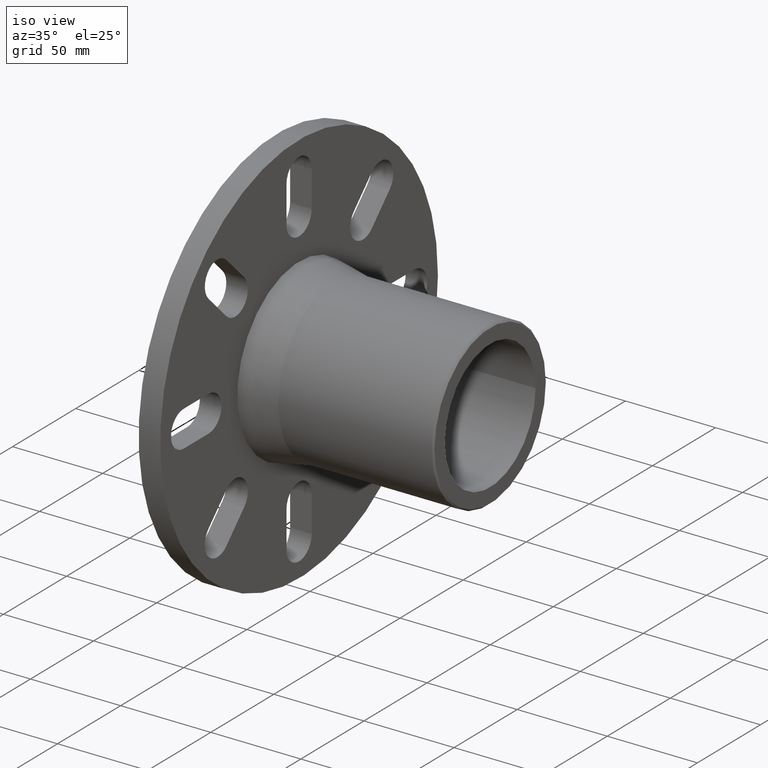
[diagram: clean part render]
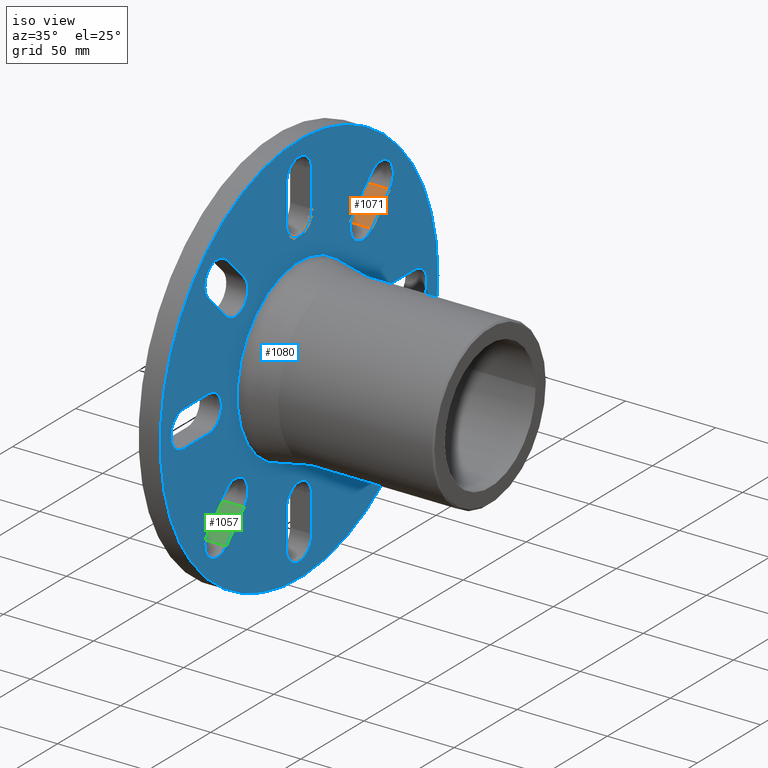
[diagram: same view with three faces highlighted in distinct colors, each labeled with its STEP entity id]
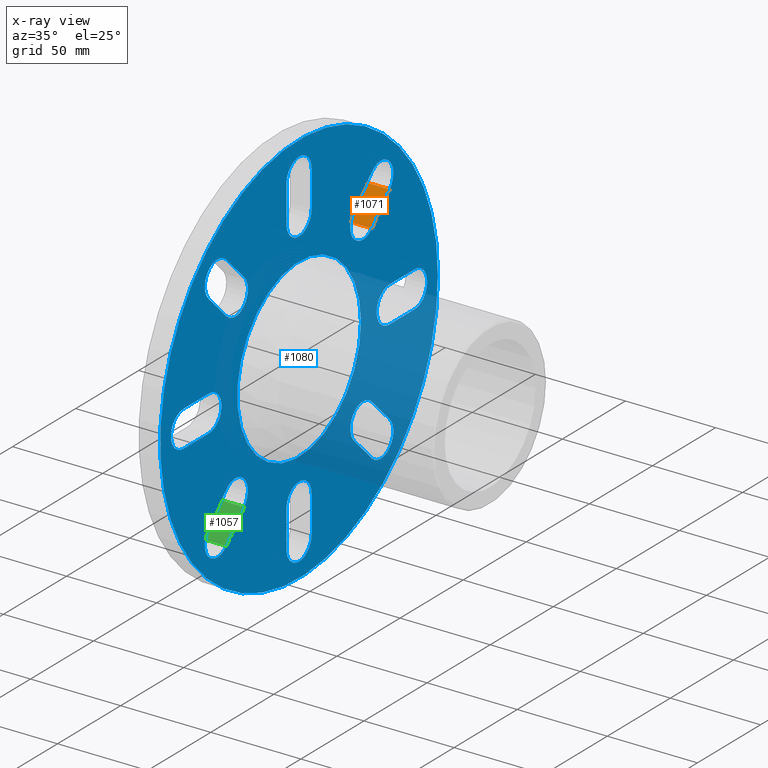
[diagram: x-ray of the same camera — body ghosted, the three highlighted faces saturated]
A machine part, iso view with three faces highlighted in distinct colors.
The next image is the same camera in x-ray (body ghosted, the three faces saturated) — at least one of them is partly hidden behind the body in this view.
Their STEP definitions:

[orange] entity #1071 — the highlighted planar face has unit normal (0, 0.7071, -0.7071).
#18=LINE('',#1666,#82);
#68=LINE('',#1822,#132);
#69=LINE('',#1825,#133);
#70=LINE('',#1826,#134);
#82=VECTOR('',#1350,20.);
#132=VECTOR('',#1512,12.);
#133=VECTOR('',#1515,20.);
#134=VECTOR('',#1516,12.);
#170=PLANE('',#1203);
#317=FACE_OUTER_BOUND('',#424,.T.);
#424=EDGE_LOOP('',(#943,#944,#945,#946));
#554=VERTEX_POINT('',#1659);
#557=VERTEX_POINT('',#1664);
#607=VERTEX_POINT('',#1819);
#608=VERTEX_POINT('',#1824);
#657=EDGE_CURVE('',#557,#554,#18,.T.);
#732=EDGE_CURVE('',#554,#607,#68,.T.);
#733=EDGE_CURVE('',#607,#608,#69,.T.);
#734=EDGE_CURVE('',#557,#608,#70,.T.);
#943=ORIENTED_EDGE('',*,*,#733,.F.);
#944=ORIENTED_EDGE('',*,*,#732,.F.);
#945=ORIENTED_EDGE('',*,*,#657,.F.);
#946=ORIENTED_EDGE('',*,*,#734,.T.);
#1071=ADVANCED_FACE('',(#317),#170,.F.);
#1203=AXIS2_PLACEMENT_3D('',#1823,#1513,#1514);
#1350=DIRECTION('',(-8.65956056235494E-17,0.707106781186548,0.707106781186547));
#1512=DIRECTION('',(1.,7.09646309009616E-17,7.09646309009616E-17));
#1513=DIRECTION('center_axis',(2.22842063621754E-32,0.707106781186547,-0.707106781186548));
#1514=DIRECTION('ref_axis',(0.,0.707106781186548,0.707106781186548));
#1515=DIRECTION('',(8.65956056235494E-17,-0.707106781186548,-0.707106781186547));
#1516=DIRECTION('',(1.,7.09646309009616E-17,7.09646309009616E-17));
#1659=CARTESIAN_POINT('',(-118.,71.7713382904346,57.6292026667036));
#1664=CARTESIAN_POINT('',(-118.,57.6292026667036,43.4870670429727));
#1666=CARTESIAN_POINT('',(-118.,59.8501352392845,45.7079996155536));
#1819=CARTESIAN_POINT('',(-106.,71.7713382904346,57.6292026667036));
#1822=CARTESIAN_POINT('',(-118.,71.7713382904346,57.6292026667036));
#1823=CARTESIAN_POINT('Origin',(-118.,57.6292026667036,43.4870670429727));
#1824=CARTESIAN_POINT('',(-106.,57.6292026667036,43.4870670429727));
#1825=CARTESIAN_POINT('',(-106.,44.6001352392845,30.4579996155536));
#1826=CARTESIAN_POINT('',(-118.,57.6292026667036,43.4870670429727));

[blue] entity #1080 — the highlighted planar face has unit normal (1, 0, 0).
#33=LINE('',#1729,#97);
#36=LINE('',#1736,#100);
#39=LINE('',#1745,#103);
#42=LINE('',#1752,#106);
#45=LINE('',#1761,#109);
#48=LINE('',#1768,#112);
#51=LINE('',#1777,#115);
#54=LINE('',#1784,#118);
#57=LINE('',#1793,#121);
#60=LINE('',#1800,#124);
#63=LINE('',#1809,#127);
#66=LINE('',#1816,#130);
#69=LINE('',#1825,#133);
#72=LINE('',#1832,#136);
#75=LINE('',#1841,#139);
#78=LINE('',#1848,#142);
#97=VECTOR('',#1407,20.);
#100=VECTOR('',#1416,20.);
#103=VECTOR('',#1425,20.);
#106=VECTOR('',#1434,20.);
#109=VECTOR('',#1443,20.);
#112=VECTOR('',#1452,20.);
#115=VECTOR('',#1461,20.);
#118=VECTOR('',#1470,20.);
#121=VECTOR('',#1479,20.);
#124=VECTOR('',#1488,20.);
#127=VECTOR('',#1497,20.);
#130=VECTOR('',#1506,20.);
#133=VECTOR('',#1515,20.);
#136=VECTOR('',#1524,20.);
#139=VECTOR('',#1533,20.);
#142=VECTOR('',#1542,20.);
#175=PLANE('',#1217);
#250=FACE_BOUND('',#436,.T.);
#251=FACE_BOUND('',#437,.T.);
#252=FACE_BOUND('',#438,.T.);
#253=FACE_BOUND('',#439,.T.);
#254=FACE_BOUND('',#440,.T.);
#255=FACE_BOUND('',#441,.T.);
#256=FACE_BOUND('',#442,.T.);
#257=FACE_BOUND('',#443,.T.);
#258=FACE_BOUND('',#444,.T.);
#326=FACE_OUTER_BOUND('',#435,.T.);
#435=EDGE_LOOP('',(#975));
#436=EDGE_LOOP('',(#976,#977,#978,#979));
#437=EDGE_LOOP('',(#980,#981,#982,#983));
#438=EDGE_LOOP('',(#984,#985,#986,#987));
#439=EDGE_LOOP('',(#988,#989,#990,#991));
#440=EDGE_LOOP('',(#992,#993,#994,#995));
#441=EDGE_LOOP('',(#996,#997,#998,#999));
#442=EDGE_LOOP('',(#1000,#1001,#1002,#1003));
#443=EDGE_LOOP('',(#1004,#1005,#1006,#1007));
#444=EDGE_LOOP('',(#1008));
#498=CIRCLE('',#1166,10.);
#499=CIRCLE('',#1169,10.);
#500=CIRCLE('',#1172,10.);
#501=CIRCLE('',#1175,10.);
#502=CIRCLE('',#1178,10.);
#503=CIRCLE('',#1181,10.);
#504=CIRCLE('',#1184,10.);
#505=CIRCLE('',#1187,10.);
#506=CIRCLE('',#1190,10.);
#507=CIRCLE('',#1193,10.);
#508=CIRCLE('',#1196,10.);
#509=CIRCLE('',#1199,10.);
#510=CIRCLE('',#1202,10.);
#511=CIRCLE('',#1205,10.);
#512=CIRCLE('',#1208,10.);
#513=CIRCLE('',#1211,10.);
#515=CIRCLE('',#1216,110.);
#516=CIRCLE('',#1218,49.);
#582=VERTEX_POINT('',#1722);
#583=VERTEX_POINT('',#1723);
#584=VERTEX_POINT('',#1728);
#585=VERTEX_POINT('',#1732);
#586=VERTEX_POINT('',#1738);
#587=VERTEX_POINT('',#1739);
#588=VERTEX_POINT('',#1744);
#589=VERTEX_POINT('',#1748);
#590=VERTEX_POINT('',#1754);
#591=VERTEX_POINT('',#1755);
#592=VERTEX_POINT('',#1760);
#593=VERTEX_POINT('',#1764);
#594=VERTEX_POINT('',#1770);
#595=VERTEX_POINT('',#1771);
#596=VERTEX_POINT('',#1776);
#597=VERTEX_POINT('',#1780);
#598=VERTEX_POINT('',#1786);
#599=VERTEX_POINT('',#1787);
#600=VERTEX_POINT('',#1792);
#601=VERTEX_POINT('',#1796);
#602=VERTEX_POINT('',#1802);
#603=VERTEX_POINT('',#1803);
#604=VERTEX_POINT('',#1808);
#605=VERTEX_POINT('',#1812);
#606=VERTEX_POINT('',#1818);
#607=VERTEX_POINT('',#1819);
#608=VERTEX_POINT('',#1824);
#609=VERTEX_POINT('',#1828);
#610=VERTEX_POINT('',#1834);
#611=VERTEX_POINT('',#1835);
#612=VERTEX_POINT('',#1840);
#613=VERTEX_POINT('',#1844);
#615=VERTEX_POINT('',#1853);
#616=VERTEX_POINT('',#1856);
#682=EDGE_CURVE('',#582,#583,#498,.T.);
#685=EDGE_CURVE('',#583,#584,#33,.T.);
#687=EDGE_CURVE('',#584,#585,#499,.T.);
#689=EDGE_CURVE('',#585,#582,#36,.T.);
#690=EDGE_CURVE('',#586,#587,#500,.T.);
#693=EDGE_CURVE('',#587,#588,#39,.T.);
#695=EDGE_CURVE('',#588,#589,#501,.T.);
#697=EDGE_CURVE('',#589,#586,#42,.T.);
#698=EDGE_CURVE('',#590,#591,#502,.T.);
#701=EDGE_CURVE('',#591,#592,#45,.T.);
#703=EDGE_CURVE('',#592,#593,#503,.T.);
#705=EDGE_CURVE('',#593,#590,#48,.T.);
#706=EDGE_CURVE('',#594,#595,#504,.T.);
#709=EDGE_CURVE('',#595,#596,#51,.T.);
#711=EDGE_CURVE('',#596,#597,#505,.T.);
#713=EDGE_CURVE('',#597,#594,#54,.T.);
#714=EDGE_CURVE('',#598,#599,#506,.T.);
#717=EDGE_CURVE('',#599,#600,#57,.T.);
#719=EDGE_CURVE('',#600,#601,#507,.T.);
#721=EDGE_CURVE('',#601,#598,#60,.T.);
#722=EDGE_CURVE('',#602,#603,#508,.T.);
#725=EDGE_CURVE('',#603,#604,#63,.T.);
#727=EDGE_CURVE('',#604,#605,#509,.T.);
#729=EDGE_CURVE('',#605,#602,#66,.T.);
#730=EDGE_CURVE('',#606,#607,#510,.T.);
#733=EDGE_CURVE('',#607,#608,#69,.T.);
#735=EDGE_CURVE('',#608,#609,#511,.T.);
#737=EDGE_CURVE('',#609,#606,#72,.T.);
#738=EDGE_CURVE('',#610,#611,#512,.T.);
#741=EDGE_CURVE('',#611,#612,#75,.T.);
#743=EDGE_CURVE('',#612,#613,#513,.T.);
#745=EDGE_CURVE('',#613,#610,#78,.T.);
#747=EDGE_CURVE('',#615,#615,#515,.T.);
#748=EDGE_CURVE('',#616,#616,#516,.T.);
#975=ORIENTED_EDGE('',*,*,#747,.T.);
#976=ORIENTED_EDGE('',*,*,#682,.T.);
#977=ORIENTED_EDGE('',*,*,#685,.T.);
#978=ORIENTED_EDGE('',*,*,#687,.T.);
#979=ORIENTED_EDGE('',*,*,#689,.T.);
#980=ORIENTED_EDGE('',*,*,#690,.T.);
#981=ORIENTED_EDGE('',*,*,#693,.T.);
#982=ORIENTED_EDGE('',*,*,#695,.T.);
#983=ORIENTED_EDGE('',*,*,#697,.T.);
#984=ORIENTED_EDGE('',*,*,#698,.T.);
#985=ORIENTED_EDGE('',*,*,#701,.T.);
#986=ORIENTED_EDGE('',*,*,#703,.T.);
#987=ORIENTED_EDGE('',*,*,#705,.T.);
#988=ORIENTED_EDGE('',*,*,#706,.T.);
#989=ORIENTED_EDGE('',*,*,#709,.T.);
#990=ORIENTED_EDGE('',*,*,#711,.T.);
#991=ORIENTED_EDGE('',*,*,#713,.T.);
#992=ORIENTED_EDGE('',*,*,#714,.T.);
#993=ORIENTED_EDGE('',*,*,#717,.T.);
#994=ORIENTED_EDGE('',*,*,#719,.T.);
#995=ORIENTED_EDGE('',*,*,#721,.T.);
#996=ORIENTED_EDGE('',*,*,#722,.T.);
#997=ORIENTED_EDGE('',*,*,#725,.T.);
#998=ORIENTED_EDGE('',*,*,#727,.T.);
#999=ORIENTED_EDGE('',*,*,#729,.T.);
#1000=ORIENTED_EDGE('',*,*,#730,.T.);
#1001=ORIENTED_EDGE('',*,*,#733,.T.);
#1002=ORIENTED_EDGE('',*,*,#735,.T.);
#1003=ORIENTED_EDGE('',*,*,#737,.T.);
#1004=ORIENTED_EDGE('',*,*,#743,.T.);
#1005=ORIENTED_EDGE('',*,*,#745,.T.);
#1006=ORIENTED_EDGE('',*,*,#738,.T.);
#1007=ORIENTED_EDGE('',*,*,#741,.T.);
#1008=ORIENTED_EDGE('',*,*,#748,.F.);
#1080=ADVANCED_FACE('',(#326,#250,#251,#252,#253,#254,#255,#256,#257,#258),
#175,.T.);
#1166=AXIS2_PLACEMENT_3D('',#1724,#1401,#1402);
#1169=AXIS2_PLACEMENT_3D('',#1733,#1411,#1412);
#1172=AXIS2_PLACEMENT_3D('',#1740,#1419,#1420);
#1175=AXIS2_PLACEMENT_3D('',#1749,#1429,#1430);
#1178=AXIS2_PLACEMENT_3D('',#1756,#1437,#1438);
#1181=AXIS2_PLACEMENT_3D('',#1765,#1447,#1448);
#1184=AXIS2_PLACEMENT_3D('',#1772,#1455,#1456);
#1187=AXIS2_PLACEMENT_3D('',#1781,#1465,#1466);
#1190=AXIS2_PLACEMENT_3D('',#1788,#1473,#1474);
#1193=AXIS2_PLACEMENT_3D('',#1797,#1483,#1484);
#1196=AXIS2_PLACEMENT_3D('',#1804,#1491,#1492);
#1199=AXIS2_PLACEMENT_3D('',#1813,#1501,#1502);
#1202=AXIS2_PLACEMENT_3D('',#1820,#1509,#1510);
#1205=AXIS2_PLACEMENT_3D('',#1829,#1519,#1520);
#1208=AXIS2_PLACEMENT_3D('',#1836,#1527,#1528);
#1211=AXIS2_PLACEMENT_3D('',#1845,#1537,#1538);
#1216=AXIS2_PLACEMENT_3D('',#1854,#1549,#1550);
#1217=AXIS2_PLACEMENT_3D('',#1855,#1551,#1552);
#1218=AXIS2_PLACEMENT_3D('',#1857,#1553,#1554);
#1401=DIRECTION('center_axis',(-1.,-1.22464679914735E-16,0.));
#1402=DIRECTION('ref_axis',(-3.56547301794808E-31,0.70710678118655,0.707106781186545));
#1407=DIRECTION('',(8.65956056235493E-17,-0.707106781186547,0.707106781186548));
#1411=DIRECTION('center_axis',(-1.,-1.22464679914735E-16,0.));
#1412=DIRECTION('ref_axis',(0.,-0.707106781186548,-0.707106781186547));
#1416=DIRECTION('',(-8.65956056235493E-17,0.707106781186547,-0.707106781186548));
#1419=DIRECTION('center_axis',(-1.,-1.22464679914735E-16,0.));
#1420=DIRECTION('ref_axis',(-3.56547301794808E-31,1.,-3.77475828372553E-15));
#1425=DIRECTION('',(-3.39907768361723E-32,2.77555756156289E-16,1.));
#1429=DIRECTION('center_axis',(-1.,-1.22464679914735E-16,0.));
#1430=DIRECTION('ref_axis',(0.,-1.,2.22044604925031E-16));
#1434=DIRECTION('',(3.39907768361723E-32,-2.77555756156289E-16,-1.));
#1437=DIRECTION('center_axis',(-1.,-1.22464679914735E-16,0.));
#1438=DIRECTION('ref_axis',(-3.56547301794808E-31,0.707106781186545,-0.70710678118655));
#1443=DIRECTION('',(-8.65956056235494E-17,0.707106781186548,0.707106781186547));
#1447=DIRECTION('center_axis',(-1.,-1.22464679914735E-16,0.));
#1448=DIRECTION('ref_axis',(0.,-0.707106781186547,0.707106781186548));
#1452=DIRECTION('',(8.65956056235494E-17,-0.707106781186548,-0.707106781186547));
#1455=DIRECTION('center_axis',(-1.,-1.22464679914735E-16,0.));
#1456=DIRECTION('ref_axis',(-3.56547301794808E-31,-3.77475828372553E-15,
-1.));
#1461=DIRECTION('',(-1.22464679914735E-16,1.,-2.77555756156289E-16));
#1465=DIRECTION('center_axis',(-1.,-1.22464679914735E-16,0.));
#1466=DIRECTION('ref_axis',(0.,2.22044604925031E-16,1.));
#1470=DIRECTION('',(1.22464679914735E-16,-1.,2.77555756156289E-16));
#1473=DIRECTION('center_axis',(-1.,-1.22464679914735E-16,0.));
#1474=DIRECTION('ref_axis',(-3.56547301794808E-31,-0.70710678118655,-0.707106781186545));
#1479=DIRECTION('',(-8.65956056235493E-17,0.707106781186547,-0.707106781186548));
#1483=DIRECTION('center_axis',(-1.,-1.22464679914735E-16,0.));
#1484=DIRECTION('ref_axis',(0.,0.707106781186548,0.707106781186547));
#1488=DIRECTION('',(8.65956056235493E-17,-0.707106781186547,0.707106781186548));
#1491=DIRECTION('center_axis',(-1.,-1.22464679914735E-16,0.));
#1492=DIRECTION('ref_axis',(-3.56547301794808E-31,-1.,3.60822483003176E-15));
#1497=DIRECTION('',(2.71926214689378E-32,-2.22044604925031E-16,-1.));
#1501=DIRECTION('center_axis',(-1.,-1.22464679914735E-16,0.));
#1502=DIRECTION('ref_axis',(0.,1.,0.));
#1506=DIRECTION('',(-2.71926214689378E-32,2.22044604925031E-16,1.));
#1509=DIRECTION('center_axis',(-1.,-1.22464679914735E-16,0.));
#1510=DIRECTION('ref_axis',(-3.56547301794808E-31,-0.707106781186545,0.70710678118655));
#1515=DIRECTION('',(8.65956056235494E-17,-0.707106781186548,-0.707106781186547));
#1519=DIRECTION('center_axis',(-1.,-1.22464679914735E-16,0.));
#1520=DIRECTION('ref_axis',(0.,0.707106781186547,-0.707106781186548));
#1524=DIRECTION('',(-8.65956056235494E-17,0.707106781186548,0.707106781186547));
#1527=DIRECTION('center_axis',(-1.,-1.22464679914735E-16,0.));
#1528=DIRECTION('ref_axis',(-3.56547301794808E-31,3.5527136788005E-15,1.));
#1533=DIRECTION('',(1.22464679914735E-16,-1.,2.22044604925031E-16));
#1537=DIRECTION('center_axis',(-1.,-1.22464679914735E-16,0.));
#1538=DIRECTION('ref_axis',(0.,0.,-1.));
#1542=DIRECTION('',(-1.22464679914735E-16,1.,-2.22044604925031E-16));
#1549=DIRECTION('center_axis',(1.,1.22464679914735E-16,0.));
#1550=DIRECTION('ref_axis',(0.,0.,-1.));
#1551=DIRECTION('center_axis',(1.,1.22464679914735E-16,0.));
#1552=DIRECTION('ref_axis',(0.,0.,-1.));
#1553=DIRECTION('center_axis',(1.,1.22464679914735E-16,0.));
#1554=DIRECTION('ref_axis',(0.,0.,-1.));
#1722=CARTESIAN_POINT('',(-106.,71.7713382904346,-57.6292026667037));
#1723=CARTESIAN_POINT('',(-106.,57.6292026667036,-71.7713382904346));
#1724=CARTESIAN_POINT('Origin',(-106.,64.7002704785691,-64.7002704785691));
#1728=CARTESIAN_POINT('',(-106.,43.4870670429726,-57.6292026667036));
#1729=CARTESIAN_POINT('',(-106.,30.4579996155536,-44.6001352392845));
#1732=CARTESIAN_POINT('',(-106.,57.6292026667036,-43.4870670429727));
#1733=CARTESIAN_POINT('Origin',(-106.,50.5581348548381,-50.5581348548382));
#1736=CARTESIAN_POINT('',(-106.,51.67120305115,-37.5290674274191));
#1738=CARTESIAN_POINT('',(-106.,9.99999999999997,-91.5));
#1739=CARTESIAN_POINT('',(-106.,-10.,-91.5));
#1740=CARTESIAN_POINT('Origin',(-106.,-3.06626889116166E-14,-91.5));
#1744=CARTESIAN_POINT('',(-106.,-10.,-71.5));
#1745=CARTESIAN_POINT('',(-106.,-10.,-35.75));
#1748=CARTESIAN_POINT('',(-106.,9.99999999999998,-71.5));
#1749=CARTESIAN_POINT('Origin',(-106.,-3.06626889116166E-14,-71.5));
#1752=CARTESIAN_POINT('',(-106.,9.99999999999998,-45.75));
#1754=CARTESIAN_POINT('',(-106.,-57.6292026667037,-71.7713382904346));
#1755=CARTESIAN_POINT('',(-106.,-71.7713382904346,-57.6292026667036));
#1756=CARTESIAN_POINT('Origin',(-106.,-64.7002704785691,-64.7002704785691));
#1760=CARTESIAN_POINT('',(-106.,-57.6292026667036,-43.4870670429727));
#1761=CARTESIAN_POINT('',(-106.,-20.1001352392845,-5.9579996155536));
#1764=CARTESIAN_POINT('',(-106.,-43.4870670429727,-57.6292026667036));
#1765=CARTESIAN_POINT('Origin',(-106.,-50.5581348548382,-50.5581348548381));
#1768=CARTESIAN_POINT('',(-106.,-13.0290674274191,-27.17120305115));
#1770=CARTESIAN_POINT('',(-106.,-91.5,-9.99999999999998));
#1771=CARTESIAN_POINT('',(-106.,-91.5,10.));
#1772=CARTESIAN_POINT('Origin',(-106.,-91.5,9.69870782983753E-15));
#1776=CARTESIAN_POINT('',(-106.,-71.5,10.));
#1777=CARTESIAN_POINT('',(-106.,-11.25,9.99999999999999));
#1780=CARTESIAN_POINT('',(-106.,-71.5,-9.99999999999999));
#1781=CARTESIAN_POINT('Origin',(-106.,-71.5,9.69870782983753E-15));
#1784=CARTESIAN_POINT('',(-106.,-21.25,-10.));
#1786=CARTESIAN_POINT('',(-106.,-71.7713382904346,57.6292026667036));
#1787=CARTESIAN_POINT('',(-106.,-57.6292026667036,71.7713382904346));
#1788=CARTESIAN_POINT('Origin',(-106.,-64.7002704785691,64.7002704785691));
#1792=CARTESIAN_POINT('',(-106.,-43.4870670429727,57.6292026667036));
#1793=CARTESIAN_POINT('',(-106.,-5.95799961555361,20.1001352392845));
#1796=CARTESIAN_POINT('',(-106.,-57.6292026667036,43.4870670429727));
#1797=CARTESIAN_POINT('Origin',(-106.,-50.5581348548381,50.5581348548381));
#1800=CARTESIAN_POINT('',(-106.,-27.17120305115,13.0290674274191));
#1802=CARTESIAN_POINT('',(-106.,-10.,91.5));
#1803=CARTESIAN_POINT('',(-106.,10.,91.5));
#1804=CARTESIAN_POINT('Origin',(-106.,-4.01733632061283E-15,91.5));
#1808=CARTESIAN_POINT('',(-106.,9.99999999999998,71.5));
#1809=CARTESIAN_POINT('',(-106.,9.99999999999997,35.75));
#1812=CARTESIAN_POINT('',(-106.,-10.,71.5));
#1813=CARTESIAN_POINT('Origin',(-106.,-1.28991205176141E-14,71.5));
#1816=CARTESIAN_POINT('',(-106.,-10.,45.75));
#1818=CARTESIAN_POINT('',(-106.,57.6292026667036,71.7713382904346));
#1819=CARTESIAN_POINT('',(-106.,71.7713382904346,57.6292026667036));
#1820=CARTESIAN_POINT('Origin',(-106.,64.7002704785691,64.7002704785691));
#1824=CARTESIAN_POINT('',(-106.,57.6292026667036,43.4870670429727));
#1825=CARTESIAN_POINT('',(-106.,44.6001352392845,30.4579996155536));
#1828=CARTESIAN_POINT('',(-106.,43.4870670429727,57.6292026667036));
#1829=CARTESIAN_POINT('Origin',(-106.,50.5581348548381,50.5581348548381));
#1832=CARTESIAN_POINT('',(-106.,37.5290674274191,51.67120305115));
#1834=CARTESIAN_POINT('',(-106.,91.5,10.));
#1835=CARTESIAN_POINT('',(-106.,91.5,-10.));
#1836=CARTESIAN_POINT('Origin',(-106.,91.5,-1.98008069557511E-15));
#1840=CARTESIAN_POINT('',(-106.,71.5,-10.));
#1841=CARTESIAN_POINT('',(-106.,60.25,-10.));
#1844=CARTESIAN_POINT('',(-106.,71.5,10.));
#1845=CARTESIAN_POINT('Origin',(-106.,71.5,4.14315330016166E-15));
#1848=CARTESIAN_POINT('',(-106.,70.25,10.));
#1853=CARTESIAN_POINT('',(-106.,110.,0.));
#1854=CARTESIAN_POINT('Origin',(-106.,-1.29812560709619E-14,0.));
#1855=CARTESIAN_POINT('Origin',(-106.,49.,0.));
#1856=CARTESIAN_POINT('',(-106.,49.,0.));
#1857=CARTESIAN_POINT('Origin',(-106.,-1.29812560709619E-14,0.));

[green] entity #1057 — the highlighted planar face has unit normal (-0, 0.7071, -0.7071).
#25=LINE('',#1695,#89);
#43=LINE('',#1757,#107);
#47=LINE('',#1766,#111);
#48=LINE('',#1768,#112);
#89=VECTOR('',#1371,20.);
#107=VECTOR('',#1439,12.);
#111=VECTOR('',#1449,12.);
#112=VECTOR('',#1452,20.);
#163=PLANE('',#1182);
#303=FACE_OUTER_BOUND('',#410,.T.);
#410=EDGE_LOOP('',(#887,#888,#889,#890));
#571=VERTEX_POINT('',#1692);
#572=VERTEX_POINT('',#1694);
#590=VERTEX_POINT('',#1754);
#593=VERTEX_POINT('',#1764);
#671=EDGE_CURVE('',#571,#572,#25,.T.);
#699=EDGE_CURVE('',#571,#590,#43,.T.);
#704=EDGE_CURVE('',#572,#593,#47,.T.);
#705=EDGE_CURVE('',#593,#590,#48,.T.);
#887=ORIENTED_EDGE('',*,*,#705,.F.);
#888=ORIENTED_EDGE('',*,*,#704,.F.);
#889=ORIENTED_EDGE('',*,*,#671,.F.);
#890=ORIENTED_EDGE('',*,*,#699,.T.);
#1057=ADVANCED_FACE('',(#303),#163,.F.);
#1182=AXIS2_PLACEMENT_3D('',#1767,#1450,#1451);
#1371=DIRECTION('',(-8.65956056235494E-17,0.707106781186548,0.707106781186547));
#1439=DIRECTION('',(1.,-7.09646309009616E-17,-7.09646309009616E-17));
#1449=DIRECTION('',(1.,-7.09646309009616E-17,-7.09646309009616E-17));
#1450=DIRECTION('center_axis',(-2.22842063621754E-32,0.707106781186547,
-0.707106781186548));
#1451=DIRECTION('ref_axis',(0.,0.707106781186548,0.707106781186548));
#1452=DIRECTION('',(8.65956056235494E-17,-0.707106781186548,-0.707106781186547));
#1692=CARTESIAN_POINT('',(-118.,-57.6292026667037,-71.7713382904346));
#1694=CARTESIAN_POINT('',(-118.,-43.4870670429727,-57.6292026667036));
#1695=CARTESIAN_POINT('',(-118.,2.22093257258093,-11.92120305115));
#1754=CARTESIAN_POINT('',(-106.,-57.6292026667037,-71.7713382904346));
#1757=CARTESIAN_POINT('',(-118.,-57.6292026667037,-71.7713382904346));
#1764=CARTESIAN_POINT('',(-106.,-43.4870670429727,-57.6292026667036));
#1766=CARTESIAN_POINT('',(-118.,-43.4870670429727,-57.6292026667036));
#1767=CARTESIAN_POINT('Origin',(-118.,-57.6292026667037,-71.7713382904346));
#1768=CARTESIAN_POINT('',(-106.,-13.0290674274191,-27.17120305115));